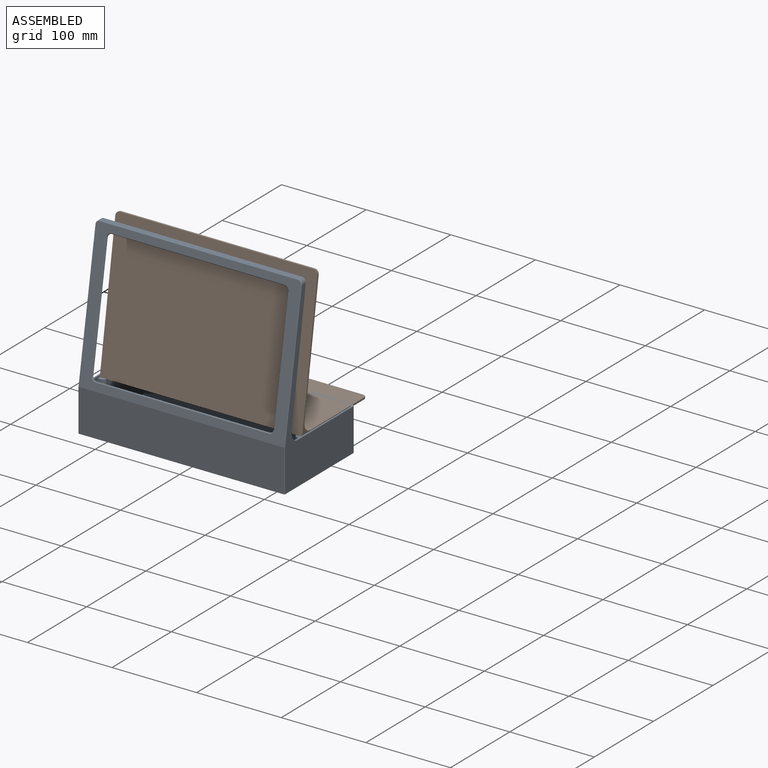
[diagram: assembled view]
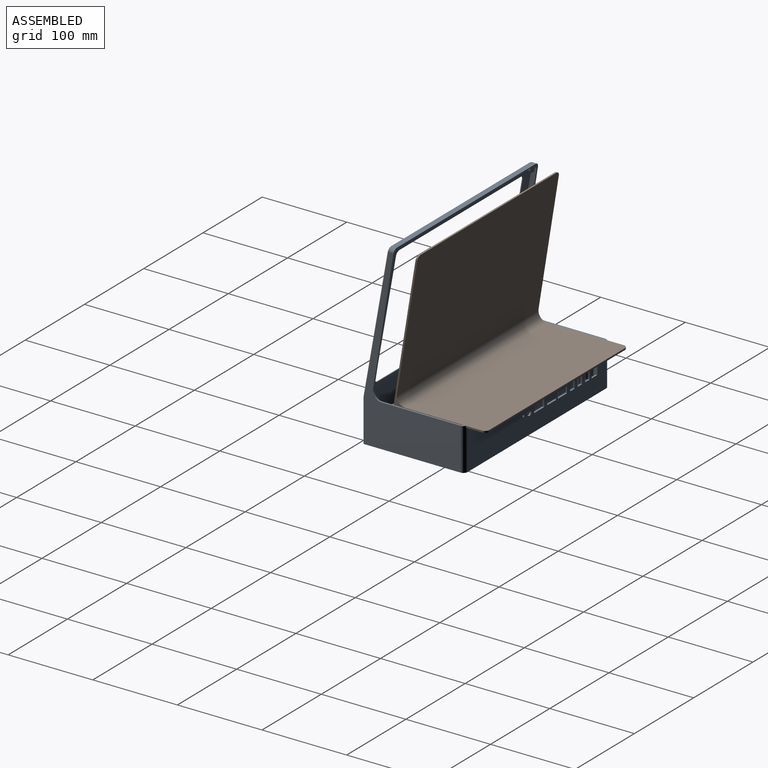
[diagram: assembled view, second angle]
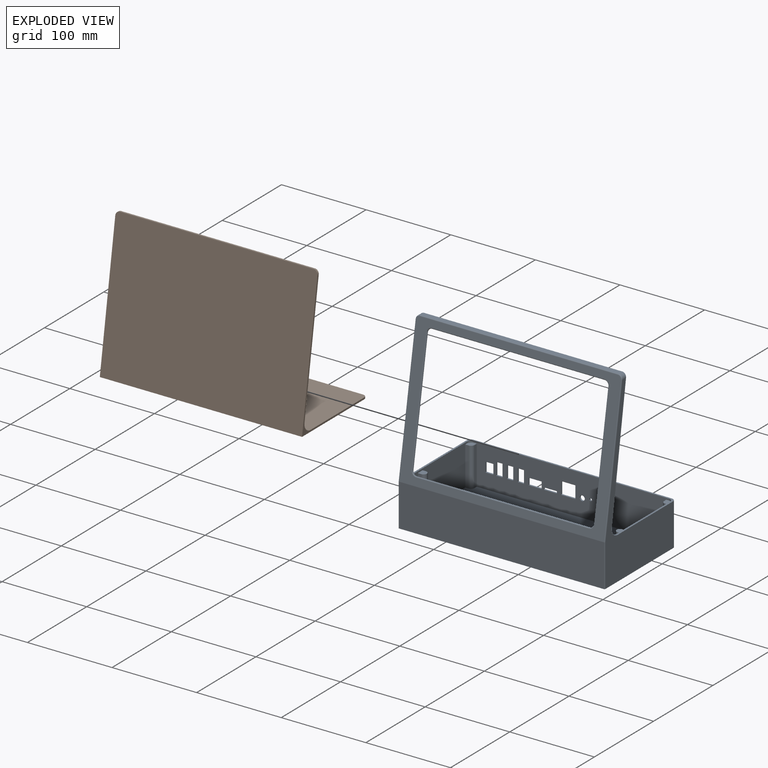
[diagram: exploded view]
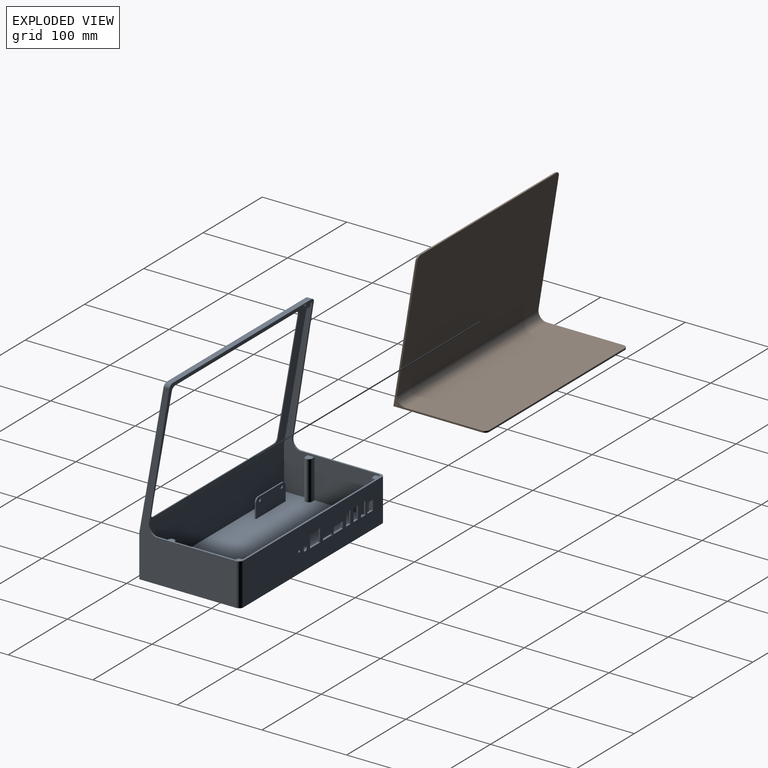
[diagram: exploded view, second angle]
ASSEMBLY  parts=2 mates=2
PART A: 119 faces, bbox 244x120x217.4 mm
  f0: plane 230x48mm, normal (0,1,0), area 9864.2mm2, adj f11,f12,f19,f20,f33,f34,f42,f43
  f1: plane 234x50mm, normal (0,-1,0), area 10800.2mm2, adj f5,f12,f42,f43,f44,f45,f46,f47
  f2: plane 214.42x111mm, normal (1,0,0), area 5981.6mm2, adj f4,f8,f10,f11,f12,f13,f18,f20
  f3: plane 242x166.51mm, normal (0,0.98,0.17), area 8107.7mm2, adj f90,f91,f92,f93,f94,f95,f96,f97
  f4: plane 240x163.21mm, normal (0,-0.98,-0.17), area 7575.3mm2, adj f2,f9,f10,f15,f16,f17,f24,f25
  f5: plane 244x120mm, normal (0,0,-1), area 29268.8mm2, adj f1,f6,f14,f31,f79,f85,f98,f102
  f6: plane 242x49.91mm, normal (0,1,0), area 12078.8mm2, adj f5,f98,f101,f102
  f7: plane 234x6.27mm, normal (0,0,1), area 1466.9mm2, adj f8,f78,f84,f105
  f8: plane 240x6.5mm, normal (0,-0.98,-0.17), area 374.5mm2, adj f2,f7,f9,f29,f78,f84,f87,f89
  f9: plane 230x5.58mm, normal (0,0,-1), area 1284.5mm2, adj f4,f8,f26,f40,f87,f89
  f10: plane 240x50.71mm, normal (0,-1,0), area 12169.4mm2, adj f2,f4,f11,f29
  f11: plane 240x116mm, normal (0,0,1), area 27529.6mm2, adj f0,f2,f10,f18,f19,f21,f22,f29
  f12: plane 244x98.29mm, normal (0,0,1), area 873.1mm2, adj f0,f1,f2,f14,f29,f31,f79,f85
  f13: plane 154.85x24.62mm, normal (0,-0.99,-0.16), area 311.1mm2, adj f2,f14,f84,f109
  f14: plane 212.42x114mm, normal (-1,0,0), area 6962.2mm2, adj f5,f12,f13,f84,f85,f98,f100,f109
  f15: plane 137.96x24.79mm, normal (1,0,0), area 70mm2, adj f4,f82,f83,f95
  f16: plane 204x0.49mm, normal (0,0.17,-0.98), area 102mm2, adj f4,f81,f82,f91
  f17: plane 204x0.49mm, normal (0,-0.17,0.98), area 102mm2, adj f4,f80,f83,f96
  f18: plane 46x4mm, normal (0,1,0), area 184mm2, adj f2,f11,f20,f77
  f19: plane 46x4mm, normal (1,0,0), area 184mm2, adj f0,f11,f20,f77
  f20: plane 8x8mm, normal (0,0,1), area 55.2mm2, adj f0,f2,f18,f19,f77,f86
  f21: plane 46x4mm, normal (0,1,0), area 184mm2, adj f2,f11,f23,f76
  f22: plane 46x4mm, normal (0,-1,0), area 184mm2, adj f2,f11,f23,f76
  f23: plane 8x8mm, normal (0,0,1), area 57.1mm2, adj f2,f21,f22,f76
  f24: plane 4x3.45mm, normal (0,0.17,-0.98), area 14mm2, adj f2,f4,f27,f75
  f25: plane 4.55x4.14mm, normal (1,0,0), area 14mm2, adj f4,f26,f27,f75
  f26: plane 5.39x3.45mm, normal (0,-0.17,0.98), area 16.1mm2, adj f9,f25,f27,f87
  f27: plane 8x7.88mm, normal (0,-0.98,-0.17), area 57.2mm2, adj f2,f24,f25,f26,f75,f87
  f28: plane 137.96x24.79mm, normal (-1,0,0), area 70mm2, adj f4,f80,f81,f92
  f29: plane 214.42x111mm, normal (-1,0,0), area 5981.6mm2, adj f4,f8,f10,f11,f12,f30,f32,f34
  f30: plane 154.85x24.62mm, normal (0,-0.99,-0.16), area 311.1mm2, adj f29,f31,f78,f108
  f31: plane 212.42x114mm, normal (1,0,0), area 6962.2mm2, adj f5,f12,f30,f78,f79,f102,f106,f108
  f32: plane 46x4mm, normal (0,1,0), area 184mm2, adj f11,f29,f34,f72
  f33: plane 46x4mm, normal (-1,0,0), area 184mm2, adj f0,f11,f34,f72
  f34: plane 8x8mm, normal (0,0,1), area 55.2mm2, adj f0,f29,f32,f33,f72,f88
  f35: plane 46x4mm, normal (0,1,0), area 184mm2, adj f11,f29,f37,f73
  f36: plane 46x4mm, normal (0,-1,0), area 184mm2, adj f11,f29,f37,f73
  f37: plane 8x8mm, normal (0,0,1), area 57.1mm2, adj f29,f35,f36,f73
  f38: plane 4x3.45mm, normal (0,0.17,-0.98), area 14mm2, adj f4,f29,f41,f74
  f39: plane 4.55x4.14mm, normal (-1,0,0), area 14mm2, adj f4,f40,f41,f74
  f40: plane 5.39x3.45mm, normal (0,-0.17,0.98), area 16.1mm2, adj f9,f39,f41,f89
  f41: plane 8x7.88mm, normal (0,-0.98,-0.17), area 57.2mm2, adj f29,f38,f39,f40,f74,f89
  f42: cylinder r=3mm len=6mm, axis (0,-1,0), area 37.7mm2, adj f0,f1
  f43: plane 15x2mm, normal (1,0,0), area 30mm2, adj f0,f1,f44,f46
  f44: plane 7.5x2mm, normal (0,0,1), area 15mm2, adj f0,f1,f43,f45
  f45: plane 15x2mm, normal (-1,0,0), area 30mm2, adj f0,f1,f44,f46
  f46: plane 7.5x2mm, normal (0,0,-1), area 15mm2, adj f0,f1,f43,f45
  f47: plane 15x2mm, normal (1,0,0), area 30mm2, adj f0,f1,f48,f50
  f48: plane 7.5x2mm, normal (0,0,1), area 15mm2, adj f0,f1,f47,f49
  f49: plane 15x2mm, normal (-1,0,0), area 30mm2, adj f0,f1,f48,f50
  f50: plane 7.5x2mm, normal (0,0,-1), area 15mm2, adj f0,f1,f47,f49
  f51: plane 9.5x2mm, normal (0,0,1), area 19mm2, adj f0,f1,f52,f54
  f52: plane 11.5x2mm, normal (-1,0,0), area 23mm2, adj f0,f1,f51,f53
  f53: plane 9.5x2mm, normal (0,0,-1), area 19mm2, adj f0,f1,f52,f54
  f54: plane 11.5x2mm, normal (1,0,0), area 23mm2, adj f0,f1,f51,f53
  f55: cylinder r=1.5mm len=3mm, axis (0,-1,0), area 18.8mm2, adj f0,f1
  f56: plane 15x2mm, normal (1,0,0), area 30mm2, adj f0,f1,f57,f59
  f57: plane 7.5x2mm, normal (0,0,1), area 15mm2, adj f0,f1,f56,f58
  f58: plane 15x2mm, normal (-1,0,0), area 30mm2, adj f0,f1,f57,f59
  f59: plane 7.5x2mm, normal (0,0,-1), area 15mm2, adj f0,f1,f56,f58
  f60: plane 8x2mm, normal (1,0,0), area 16mm2, adj f0,f1,f61,f63
  f61: plane 15.5x2mm, normal (0,0,1), area 31mm2, adj f0,f1,f60,f62
  f62: plane 8x2mm, normal (-1,0,0), area 16mm2, adj f0,f1,f61,f63
  f63: plane 15.5x2mm, normal (0,0,-1), area 31mm2, adj f0,f1,f60,f62
  f64: plane 2.5x2mm, normal (1,0,0), area 5mm2, adj f0,f1,f65,f67
  f65: plane 15.5x2mm, normal (0,0,1), area 31mm2, adj f0,f1,f64,f66
  f66: plane 2.5x2mm, normal (-1,0,0), area 5mm2, adj f0,f1,f65,f67
  f67: plane 15.5x2mm, normal (0,0,-1), area 31mm2, adj f0,f1,f64,f66
  f68: plane 15x2mm, normal (1,0,0), area 30mm2, adj f0,f1,f69,f71
  f69: plane 17x2mm, normal (0,0,1), area 34mm2, adj f0,f1,f68,f70
  f70: plane 15x2mm, normal (-1,0,0), area 30mm2, adj f0,f1,f69,f71
  f71: plane 17x2mm, normal (0,0,-1), area 34mm2, adj f0,f1,f68,f70
  f72: cylinder r=4mm len=46mm, axis (0,0,1), area 289mm2, adj f11,f32,f33,f34
  f73: cylinder r=4mm len=46mm, axis (0,0,1), area 578.1mm2, adj f11,f35,f36,f37
  f74: cylinder r=4mm len=4.55mm, axis (0,-0.98,-0.17), area 22mm2, adj f4,f38,f39,f41
  f75: cylinder r=4mm len=4.55mm, axis (0,-0.98,-0.17), area 22mm2, adj f4,f24,f25,f27
  f76: cylinder r=4mm len=46mm, axis (0,0,1), area 578.1mm2, adj f11,f21,f22,f23
  f77: cylinder r=4mm len=46mm, axis (0,0,1), area 289mm2, adj f11,f18,f19,f20
  f78: cylinder r=5mm len=6.97mm, axis (0,1,0), area 49mm2, adj f7,f8,f29,f30,f31,f107
  f79: cylinder r=5mm len=50mm, axis (0,0,1), area 392.7mm2, adj f1,f5,f12,f31
  f80: cylinder r=5mm len=5.01mm, axis (0,0.98,0.17), area 3.9mm2, adj f4,f17,f28,f94
  f81: cylinder r=5mm len=5.01mm, axis (0,-0.98,-0.17), area 3.9mm2, adj f4,f16,f28,f90
  f82: cylinder r=5mm len=5.01mm, axis (0,-0.98,-0.17), area 3.9mm2, adj f4,f15,f16,f93
  f83: cylinder r=5mm len=5.01mm, axis (0,0.98,0.17), area 3.9mm2, adj f4,f15,f17,f97
  f84: cylinder r=5mm len=6.97mm, axis (0,1,0), area 49mm2, adj f2,f7,f8,f13,f14,f103
  f85: cylinder r=5mm len=50mm, axis (0,0,1), area 392.7mm2, adj f1,f5,f12,f14
  f86: cylinder r=5mm len=5mm, axis (0,0,-1), area 15.7mm2, adj f0,f2,f12,f20
  f87: cylinder r=5mm len=5.58mm, axis (0,-1,0), area 21.8mm2, adj f2,f8,f9,f26,f27
  f88: cylinder r=5mm len=5mm, axis (0,0,-1), area 15.7mm2, adj f0,f12,f29,f34
  f89: cylinder r=5mm len=5.58mm, axis (0,-1,0), area 21.8mm2, adj f8,f9,f29,f40,f41
  f90: torus R=6mm, axis (0,0.98,0.17), area 13.2mm2, adj f3,f81,f91,f92
  f91: cylinder r=1mm len=204mm, axis (-1,0,0), area 320.4mm2, adj f3,f16,f90,f93
  f92: cylinder r=1mm len=138.05mm, axis (0,0.17,-0.98), area 219.9mm2, adj f3,f28,f90,f94
  f93: torus R=6mm, axis (0,0.98,0.17), area 13.2mm2, adj f3,f82,f91,f95
  f94: torus R=6mm, axis (0,0.98,0.17), area 13.2mm2, adj f3,f80,f92,f96
  f95: cylinder r=1mm len=138.05mm, axis (0,0.17,-0.98), area 219.9mm2, adj f3,f15,f93,f97
  f96: cylinder r=1mm len=204mm, axis (1,0,0), area 320.4mm2, adj f3,f17,f94,f97
  f97: torus R=6mm, axis (0,0.98,0.17), area 13.2mm2, adj f3,f83,f95,f96
  f98: cylinder r=1mm len=49.91mm, axis (0,0,-1), area 78.4mm2, adj f5,f6,f14,f99
  f99: sphere r=1mm, area 0.2mm2, adj f98,f100,f101
  f100: cylinder r=1mm len=162.68mm, axis (0,0.17,-0.98), area 259.2mm2, adj f3,f14,f99,f103
  f101: cylinder r=1mm len=242mm, axis (-1,0,0), area 42.2mm2, adj f3,f6,f99,f104
  f102: cylinder r=1mm len=49.91mm, axis (0,0,-1), area 78.4mm2, adj f5,f6,f31,f104
  f103: bspline ~5.87x5.22mm, area 10.6mm2, adj f3,f84,f100,f105
  f104: sphere r=1mm, area 0.2mm2, adj f101,f102,f106
  f105: cylinder r=1mm len=234mm, axis (-1,0,0), area 326.7mm2, adj f3,f7,f103,f107
  f106: cylinder r=1mm len=162.68mm, axis (0,0.17,-0.98), area 259.2mm2, adj f3,f31,f104,f107
  f107: bspline ~5.88x5.87mm, area 10.6mm2, adj f3,f78,f105,f106
  f108: cylinder r=10mm len=11.57mm, axis (1,0,0), area 34.6mm2, adj f12,f29,f30,f31
  f109: cylinder r=10mm len=11.57mm, axis (-1,0,0), area 34.6mm2, adj f2,f12,f13,f14
  f110: plane 50x22mm, normal (0,1,0), area 1064.1mm2, adj f11,f111,f113,f114,f115,f116,f117,f118
  f111: plane 17x1.5mm, normal (-1,0,0), area 25.5mm2, adj f11,f110,f112,f117
  f112: plane 50x22mm, normal (0,-1,0), area 1064.1mm2, adj f11,f111,f113,f114,f115,f116,f117,f118
  f113: plane 17x1.5mm, normal (1,0,0), area 25.5mm2, adj f11,f110,f112,f118
  f114: plane 40x1.5mm, normal (0,0,1), area 60mm2, adj f110,f112,f117,f118
  f115: cylinder r=2mm len=4mm, axis (0,-1,0), area 18.8mm2, adj f110,f112
  f116: cylinder r=2mm len=4mm, axis (0,-1,0), area 18.8mm2, adj f110,f112
  f117: cylinder r=5mm len=5mm, axis (0,1,0), area 11.8mm2, adj f110,f111,f112,f114
  f118: cylinder r=5mm len=5mm, axis (0,-1,0), area 11.8mm2, adj f110,f112,f113,f114
PART B: 13 faces, bbox 239x109.8x167.6 mm
  f0: plane 239x109.85mm, normal (0,0,-1), area 26242.8mm2, adj f1,f5,f6,f7,f8,f9
  f1: plane 229x2mm, normal (0,1,0), area 458mm2, adj f0,f2,f8,f9
  f2: plane 239x95.76mm, normal (0,0,1), area 22876.8mm2, adj f1,f6,f7,f8,f9,f10
  f3: plane 239x154.03mm, normal (0,0.99,-0.16), area 37274.8mm2, adj f4,f6,f7,f10,f11,f12
  f4: plane 229x2.03mm, normal (0,0,1), area 463.9mm2, adj f3,f5,f11,f12
  f5: plane 239x167.62mm, normal (0,-0.99,0.16), area 40563.9mm2, adj f0,f4,f6,f7,f11,f12
  f6: plane 162.62x104.85mm, normal (1,0,0), area 565.6mm2, adj f0,f2,f3,f5,f9,f10,f12
  f7: plane 162.62x104.85mm, normal (-1,0,0), area 565.6mm2, adj f0,f2,f3,f5,f8,f10,f11
  f8: cylinder r=5mm len=5mm, axis (0,0,1), area 15.7mm2, adj f0,f1,f2,f7
  f9: cylinder r=5mm len=5mm, axis (0,0,-1), area 15.7mm2, adj f0,f1,f2,f6
  f10: cylinder r=10mm len=239mm, axis (-1,0,0), area 4135.2mm2, adj f2,f3,f6,f7
  f11: cylinder r=5mm len=5mm, axis (0,-1,0), area 15.9mm2, adj f3,f4,f5,f7
  f12: cylinder r=5mm len=5mm, axis (0,1,0), area 15.9mm2, adj f3,f4,f5,f6
PLACE A rot(axis=(0,0,1),180deg) t=(-605.67,120.81,-51.91)mm
PLACE B t=(-606.17,187.38,-95.31)mm
MATE planar B.f7 <-> A.f29  axis (-1,0,0) through (-725.67,172.4,44.06)mm
MATE planar B.f0 <-> A.f20  axis (0,0,-1) through (-606.17,199.37,-3.91)mm
